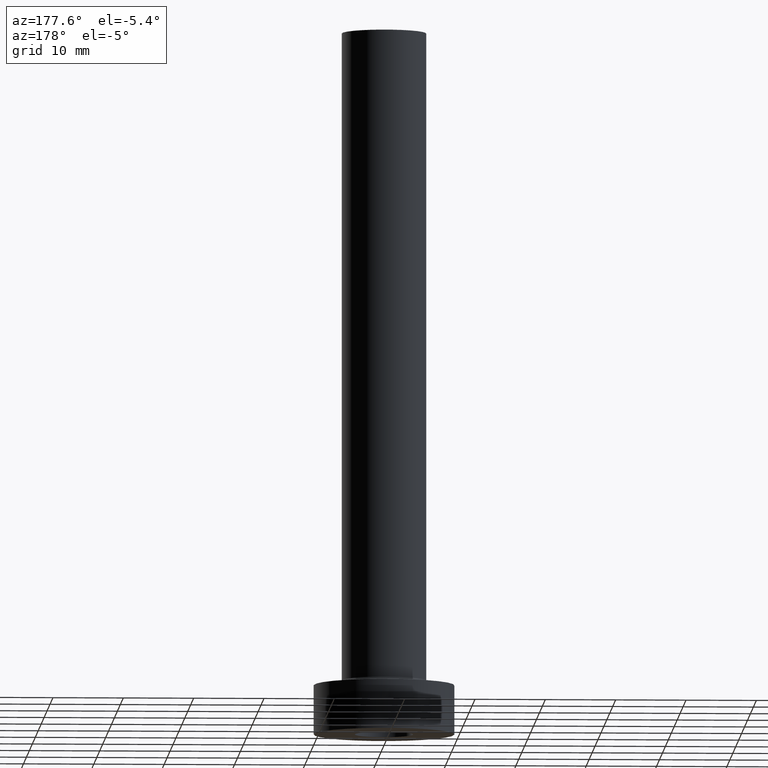
[diagram: clean part render]
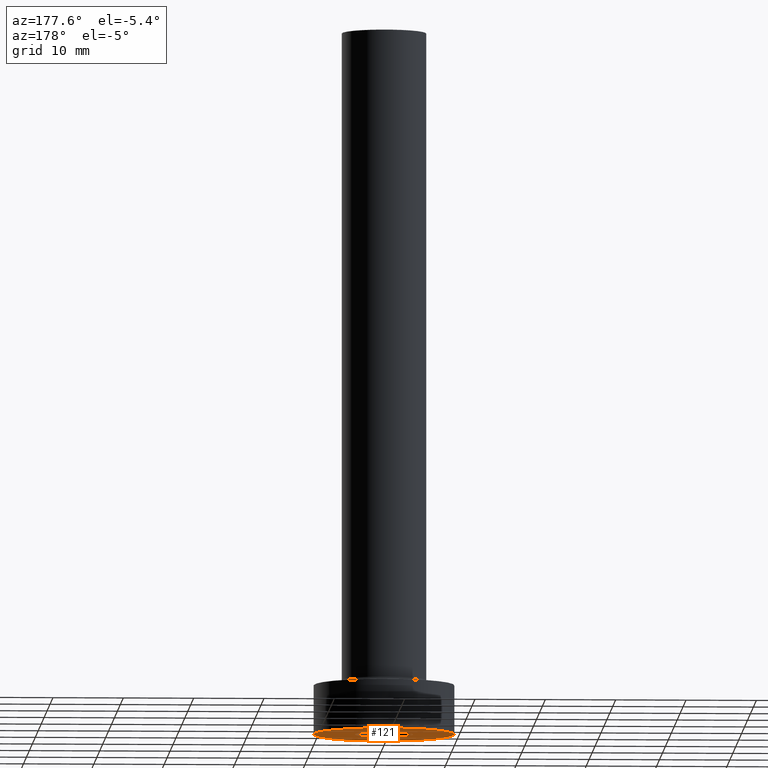
[diagram: same view with one face highlighted and labeled with its STEP entity id]
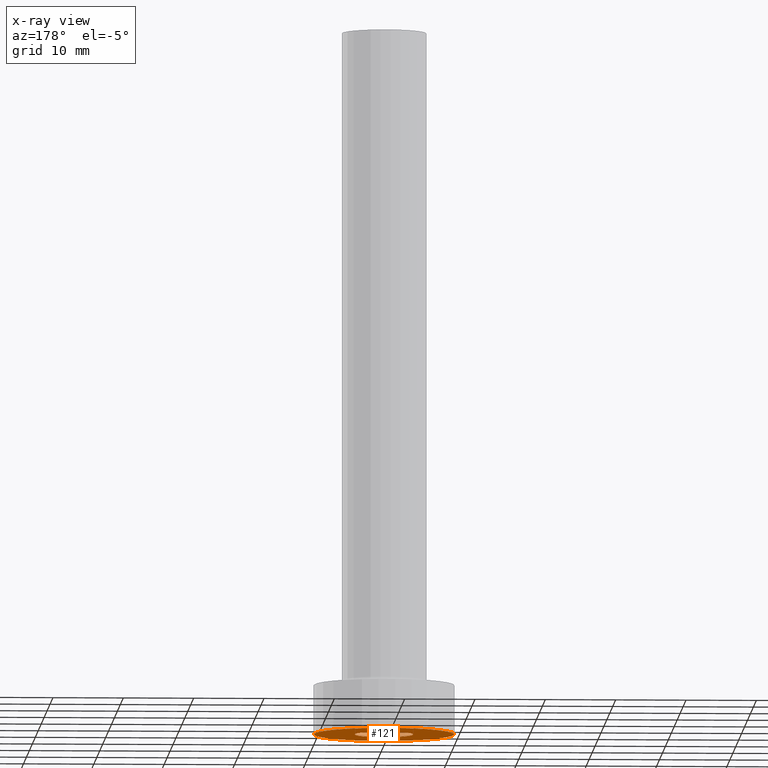
[diagram: x-ray of the same camera — body ghosted, the highlighted face saturated]
A machine part, auxiliary view. The second image highlights one B-rep face of the part: STEP entity #121.
The next image is the same camera in x-ray: the body ghosted, the highlighted face saturated — about 0% of this face is hidden behind the body in this view.
In plain terms, the highlighted planar face has unit normal (0, 0, 1).
Its self-contained STEP definition (entity closure, byte-faithful):
#5 = DIRECTION ( 'NONE',  ( 1.000000000000000000, 0.000000000000000000, -0.000000000000000000 ) ) ;
#6 = DIRECTION ( 'NONE',  ( -0.000000000000000000, -0.000000000000000000, -1.000000000000000000 ) ) ;
#16 = VERTEX_POINT ( 'NONE', #254 ) ;
#24 = ORIENTED_EDGE ( 'NONE', *, *, #138, .F. ) ;
#38 = CARTESIAN_POINT ( 'NONE',  ( 0.000000000000000000, 0.000000000000000000, 0.000000000000000000 ) ) ;
#50 = CIRCLE ( 'NONE', #330, 10.00000000000000000 ) ;
#55 = EDGE_LOOP ( 'NONE', ( #321, #195 ) ) ;
#57 = EDGE_LOOP ( 'NONE', ( #379, #24 ) ) ;
#65 = CIRCLE ( 'NONE', #395, 4.150000000000000355 ) ;
#68 = CARTESIAN_POINT ( 'NONE',  ( 0.000000000000000000, 0.000000000000000000, 0.000000000000000000 ) ) ;
#74 = PLANE ( 'NONE',  #444 ) ;
#80 = CIRCLE ( 'NONE', #376, 4.150000000000000355 ) ;
#92 = CARTESIAN_POINT ( 'NONE',  ( 10.00000000000000000, 1.224646799147353256E-15, 0.000000000000000000 ) ) ;
#121 = ADVANCED_FACE ( 'NONE', ( #459, #397 ), #74, .F. ) ;
#122 = DIRECTION ( 'NONE',  ( 0.000000000000000000, 0.000000000000000000, 1.000000000000000000 ) ) ;
#138 = EDGE_CURVE ( 'NONE', #456, #247, #314, .T. ) ;
#143 = CARTESIAN_POINT ( 'NONE',  ( 0.000000000000000000, 0.000000000000000000, 0.000000000000000000 ) ) ;
#159 = DIRECTION ( 'NONE',  ( 1.000000000000000000, 0.000000000000000000, 0.000000000000000000 ) ) ;
#160 = DIRECTION ( 'NONE',  ( 1.000000000000000000, 0.000000000000000000, 0.000000000000000000 ) ) ;
#168 = CARTESIAN_POINT ( 'NONE',  ( -10.00000000000000000, 0.000000000000000000, 0.000000000000000000 ) ) ;
#186 = DIRECTION ( 'NONE',  ( 0.000000000000000000, 0.000000000000000000, 1.000000000000000000 ) ) ;
#195 = ORIENTED_EDGE ( 'NONE', *, *, #428, .F. ) ;
#238 = CARTESIAN_POINT ( 'NONE',  ( -4.150000000000000355, 0.000000000000000000, 0.000000000000000000 ) ) ;
#247 = VERTEX_POINT ( 'NONE', #168 ) ;
#248 = DIRECTION ( 'NONE',  ( 1.000000000000000000, 0.000000000000000000, 0.000000000000000000 ) ) ;
#254 = CARTESIAN_POINT ( 'NONE',  ( 4.150000000000000355, 5.082284216461515156E-16, 0.000000000000000000 ) ) ;
#266 = CARTESIAN_POINT ( 'NONE',  ( 0.000000000000000000, 0.000000000000000000, 0.000000000000000000 ) ) ;
#270 = VERTEX_POINT ( 'NONE', #238 ) ;
#291 = DIRECTION ( 'NONE',  ( 0.000000000000000000, 0.000000000000000000, 1.000000000000000000 ) ) ;
#314 = CIRCLE ( 'NONE', #335, 10.00000000000000000 ) ;
#315 = EDGE_CURVE ( 'NONE', #270, #16, #80, .T. ) ;
#321 = ORIENTED_EDGE ( 'NONE', *, *, #315, .F. ) ;
#330 = AXIS2_PLACEMENT_3D ( 'NONE', #266, #122, #349 ) ;
#335 = AXIS2_PLACEMENT_3D ( 'NONE', #38, #186, #159 ) ;
#349 = DIRECTION ( 'NONE',  ( 1.000000000000000000, 0.000000000000000000, 0.000000000000000000 ) ) ;
#361 = EDGE_CURVE ( 'NONE', #247, #456, #50, .T. ) ;
#376 = AXIS2_PLACEMENT_3D ( 'NONE', #143, #419, #248 ) ;
#379 = ORIENTED_EDGE ( 'NONE', *, *, #361, .F. ) ;
#395 = AXIS2_PLACEMENT_3D ( 'NONE', #404, #6, #160 ) ;
#397 = FACE_OUTER_BOUND ( 'NONE', #57, .T. ) ;
#404 = CARTESIAN_POINT ( 'NONE',  ( 0.000000000000000000, 0.000000000000000000, 0.000000000000000000 ) ) ;
#419 = DIRECTION ( 'NONE',  ( -0.000000000000000000, -0.000000000000000000, -1.000000000000000000 ) ) ;
#428 = EDGE_CURVE ( 'NONE', #16, #270, #65, .T. ) ;
#444 = AXIS2_PLACEMENT_3D ( 'NONE', #68, #291, #5 ) ;
#456 = VERTEX_POINT ( 'NONE', #92 ) ;
#459 = FACE_BOUND ( 'NONE', #55, .T. ) ;